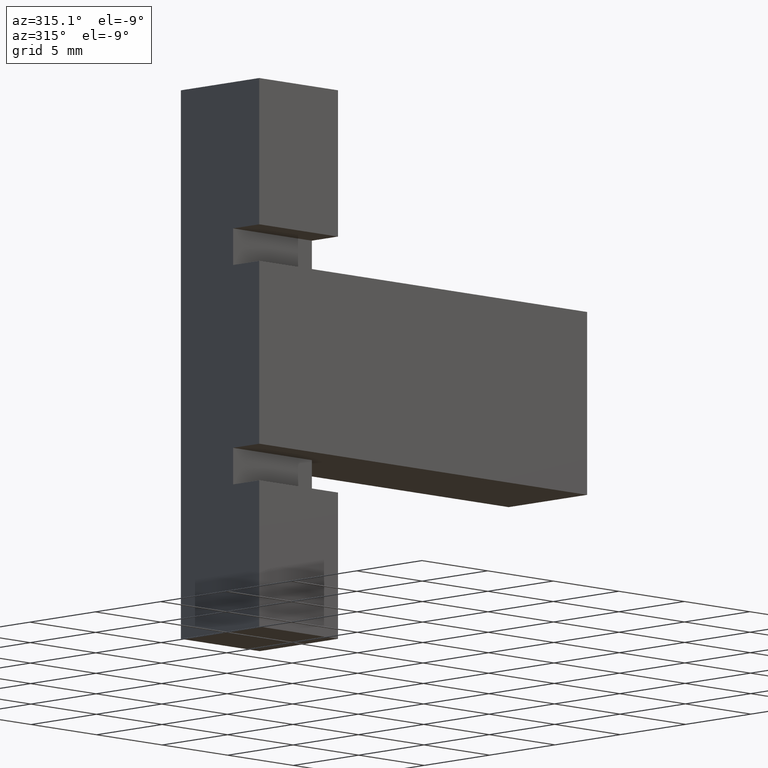
[diagram: clean part render]
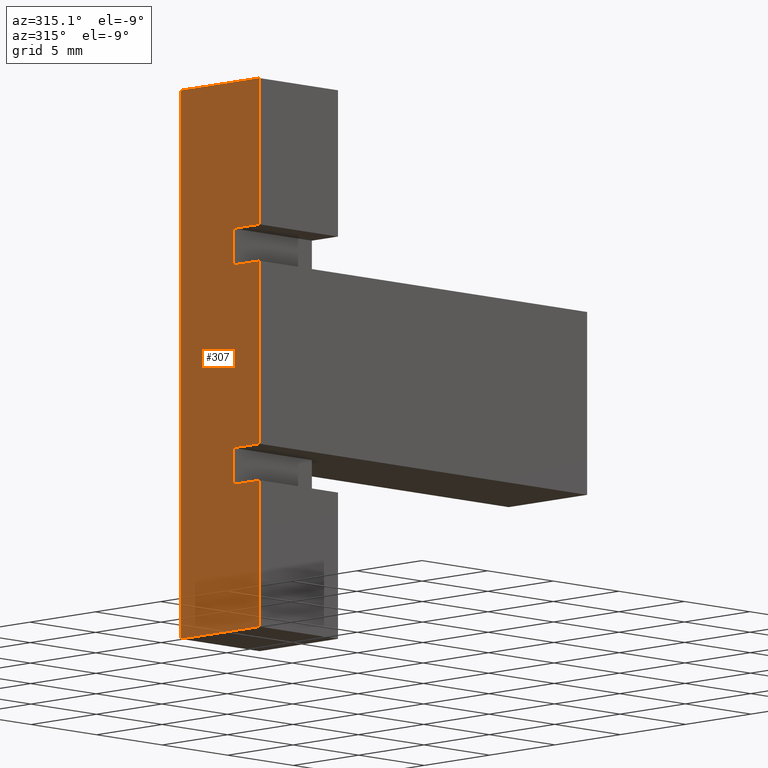
[diagram: same view with one face highlighted and labeled with its STEP entity id]
A machine part, auxiliary view. The second image highlights one B-rep face of the part: STEP entity #307.
In plain terms, the highlighted planar face has unit normal (-1, 0, 0).
Its self-contained STEP definition (entity closure, byte-faithful):
#21=FACE_OUTER_BOUND('',#37,.T.);
#37=EDGE_LOOP('',(#225,#226,#227,#228,#229,#230,#231,#232,#233,#234,#235,
#236));
#49=LINE('',#437,#91);
#53=LINE('',#444,#95);
#56=LINE('',#452,#98);
#60=LINE('',#459,#102);
#63=LINE('',#465,#105);
#67=LINE('',#474,#109);
#68=LINE('',#476,#110);
#69=LINE('',#477,#111);
#70=LINE('',#479,#112);
#71=LINE('',#481,#113);
#72=LINE('',#483,#114);
#73=LINE('',#484,#115);
#91=VECTOR('',#359,10.);
#95=VECTOR('',#365,10.);
#98=VECTOR('',#370,10.);
#102=VECTOR('',#376,10.);
#105=VECTOR('',#381,10.);
#109=VECTOR('',#387,10.);
#110=VECTOR('',#390,10.);
#111=VECTOR('',#391,10.);
#112=VECTOR('',#392,10.);
#113=VECTOR('',#393,10.);
#114=VECTOR('',#394,10.);
#115=VECTOR('',#395,10.);
#133=VERTEX_POINT('',#434);
#134=VERTEX_POINT('',#436);
#136=VERTEX_POINT('',#442);
#139=VERTEX_POINT('',#449);
#140=VERTEX_POINT('',#451);
#142=VERTEX_POINT('',#457);
#144=VERTEX_POINT('',#463);
#146=VERTEX_POINT('',#468);
#148=VERTEX_POINT('',#472);
#149=VERTEX_POINT('',#478);
#150=VERTEX_POINT('',#480);
#151=VERTEX_POINT('',#482);
#161=EDGE_CURVE('',#134,#133,#49,.T.);
#165=EDGE_CURVE('',#133,#136,#53,.T.);
#168=EDGE_CURVE('',#140,#139,#56,.T.);
#172=EDGE_CURVE('',#139,#142,#60,.T.);
#175=EDGE_CURVE('',#142,#144,#63,.T.);
#179=EDGE_CURVE('',#146,#148,#67,.T.);
#180=EDGE_CURVE('',#136,#146,#68,.T.);
#181=EDGE_CURVE('',#148,#140,#69,.T.);
#182=EDGE_CURVE('',#144,#149,#70,.T.);
#183=EDGE_CURVE('',#150,#149,#71,.T.);
#184=EDGE_CURVE('',#151,#150,#72,.T.);
#185=EDGE_CURVE('',#151,#134,#73,.T.);
#225=ORIENTED_EDGE('',*,*,#161,.T.);
#226=ORIENTED_EDGE('',*,*,#165,.T.);
#227=ORIENTED_EDGE('',*,*,#180,.T.);
#228=ORIENTED_EDGE('',*,*,#179,.T.);
#229=ORIENTED_EDGE('',*,*,#181,.T.);
#230=ORIENTED_EDGE('',*,*,#168,.T.);
#231=ORIENTED_EDGE('',*,*,#172,.T.);
#232=ORIENTED_EDGE('',*,*,#175,.T.);
#233=ORIENTED_EDGE('',*,*,#182,.T.);
#234=ORIENTED_EDGE('',*,*,#183,.F.);
#235=ORIENTED_EDGE('',*,*,#184,.F.);
#236=ORIENTED_EDGE('',*,*,#185,.T.);
#291=PLANE('',#343);
#307=ADVANCED_FACE('',(#21),#291,.T.);
#343=AXIS2_PLACEMENT_3D('',#475,#388,#389);
#359=DIRECTION('',(0.,1.,0.));
#365=DIRECTION('',(0.,-1.38777878078144E-16,1.));
#370=DIRECTION('',(0.,-1.38777878078145E-16,1.));
#376=DIRECTION('',(0.,-1.,5.55111512312578E-16));
#381=DIRECTION('',(0.,0.,1.));
#387=DIRECTION('',(0.,0.,1.));
#388=DIRECTION('center_axis',(-1.,0.,0.));
#389=DIRECTION('ref_axis',(0.,0.,1.));
#390=DIRECTION('',(0.,-1.,0.));
#391=DIRECTION('',(0.,1.,0.));
#392=DIRECTION('',(0.,1.,0.));
#393=DIRECTION('',(0.,0.,1.));
#394=DIRECTION('',(0.,1.,0.));
#395=DIRECTION('',(0.,0.,1.));
#434=CARTESIAN_POINT('',(-12.5,2.,-7.));
#436=CARTESIAN_POINT('',(-12.5,2.77555756156289E-16,-7.));
#437=CARTESIAN_POINT('',(-12.5,1.,-7.));
#442=CARTESIAN_POINT('',(-12.5,2.,-5.));
#444=CARTESIAN_POINT('',(-12.5,2.,-10.));
#449=CARTESIAN_POINT('',(-12.5,2.,7.));
#451=CARTESIAN_POINT('',(-12.5,2.,5.));
#452=CARTESIAN_POINT('',(-12.5,2.,-4.00000000000001));
#457=CARTESIAN_POINT('',(-12.5,-2.77555756156289E-16,7.));
#459=CARTESIAN_POINT('',(-12.5,5.96744875736022E-15,7.));
#463=CARTESIAN_POINT('',(-12.5,0.,15.));
#465=CARTESIAN_POINT('',(-12.5,0.,-15.));
#468=CARTESIAN_POINT('',(-12.5,0.,-5.));
#472=CARTESIAN_POINT('',(-12.5,0.,5.));
#474=CARTESIAN_POINT('',(-12.5,0.,-15.));
#475=CARTESIAN_POINT('Origin',(-12.5,0.,-15.));
#476=CARTESIAN_POINT('',(-12.5,0.,-5.));
#477=CARTESIAN_POINT('',(-12.5,1.,5.));
#478=CARTESIAN_POINT('',(-12.5,6.,15.));
#479=CARTESIAN_POINT('',(-12.5,0.,15.));
#480=CARTESIAN_POINT('',(-12.5,6.,-15.));
#481=CARTESIAN_POINT('',(-12.5,6.,-15.));
#482=CARTESIAN_POINT('',(-12.5,0.,-15.));
#483=CARTESIAN_POINT('',(-12.5,0.,-15.));
#484=CARTESIAN_POINT('',(-12.5,0.,-15.));